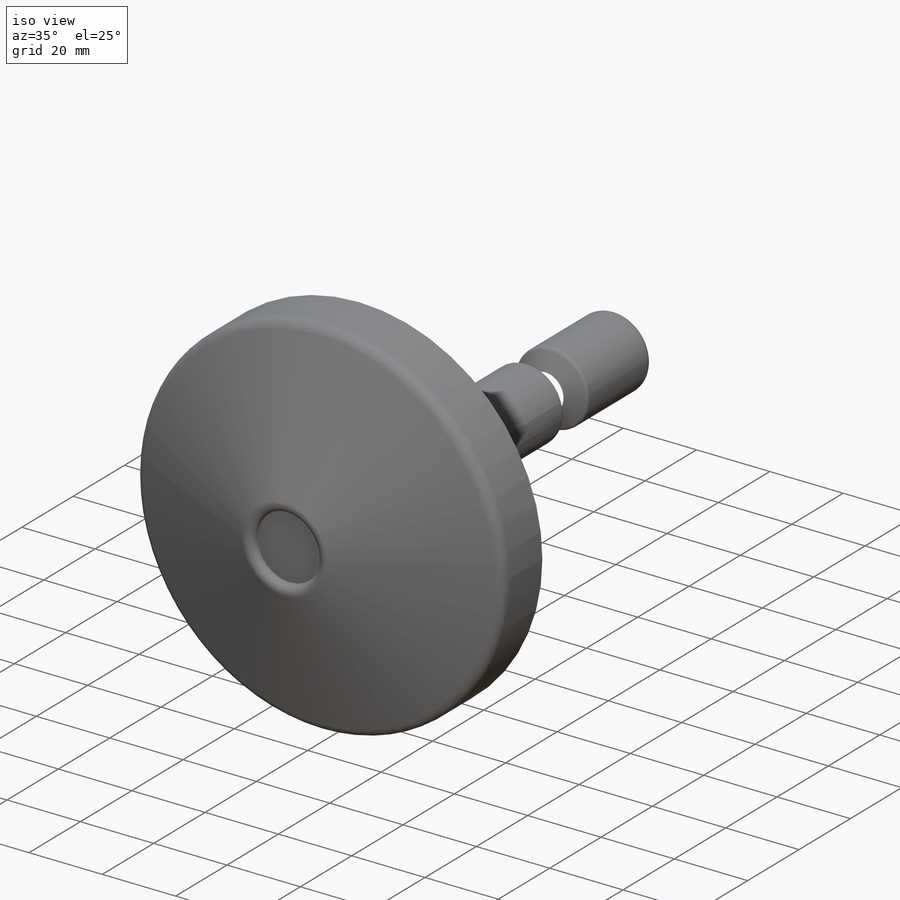
[diagram: iso view]
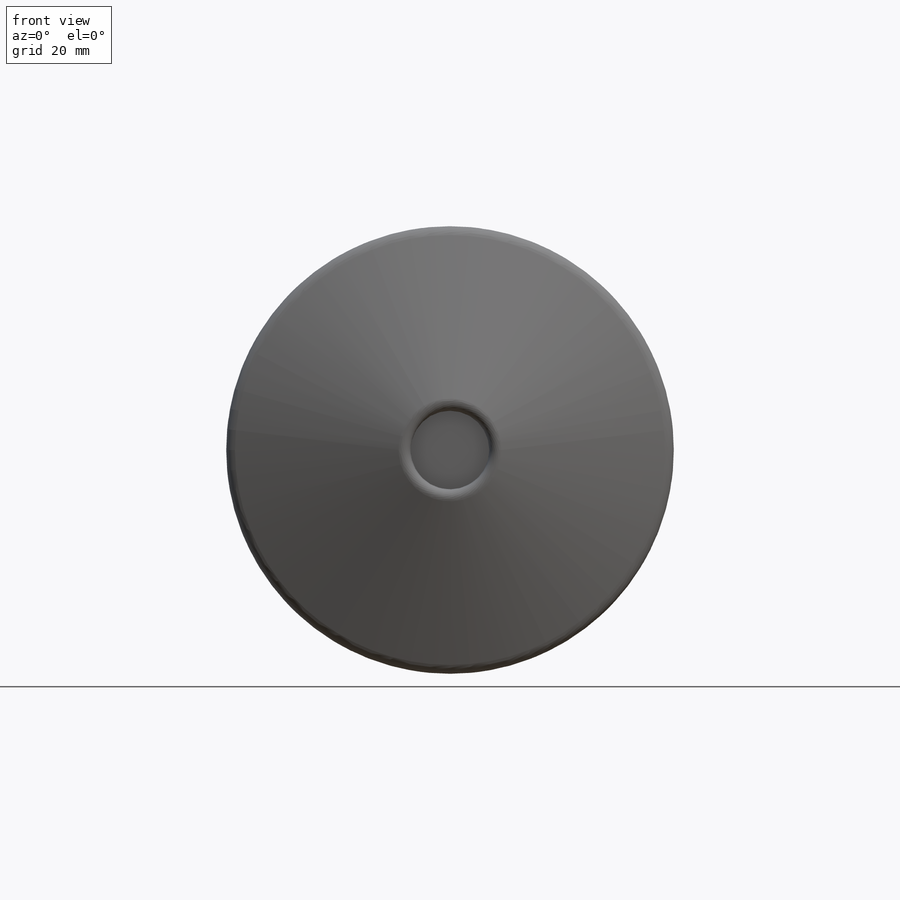
[diagram: front view]
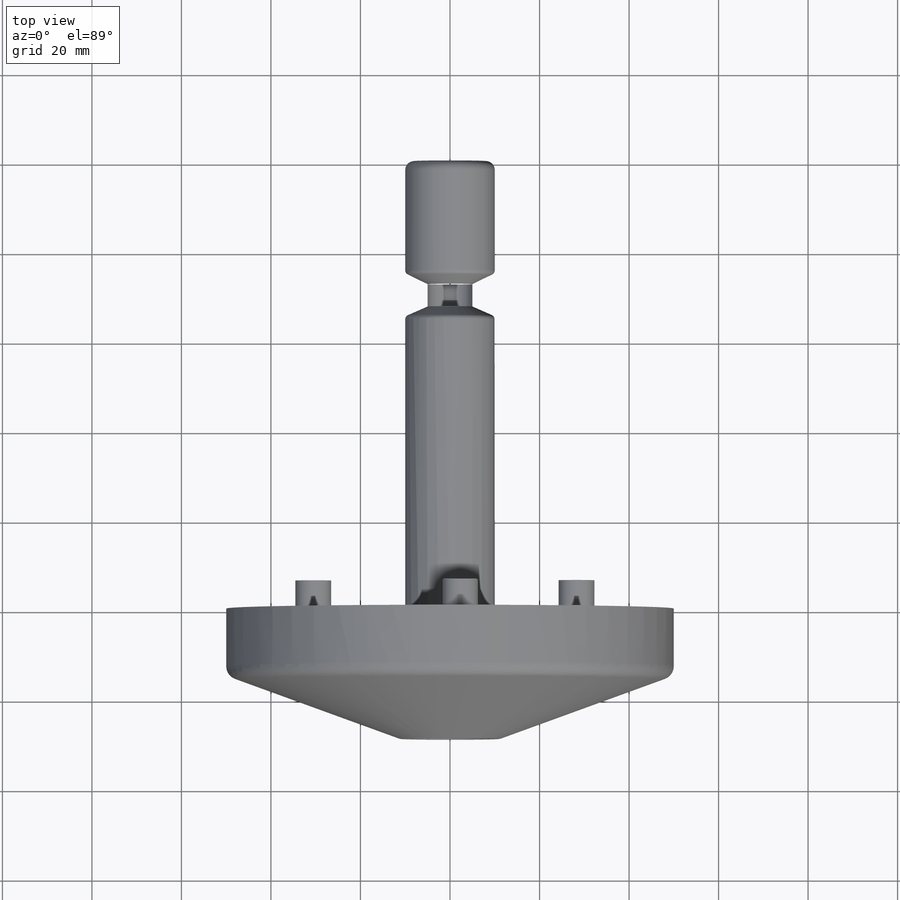
[diagram: top view]
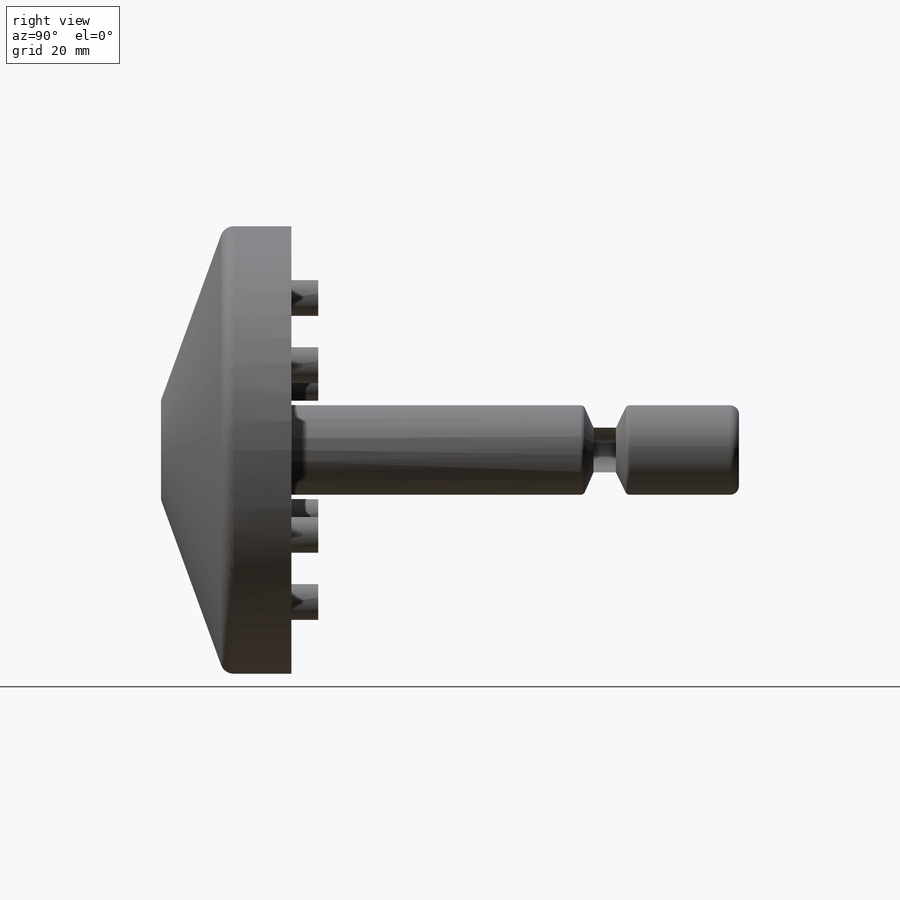
[diagram: right view]
SOLIDWORKS PART (.sldprt)
format: sldprt  version: not decoded by parser v0  size: 320,000 bytes
history: native  units: mm
features: sketch x7, extrude x5, fillet x5, plane x3, delete_body x2, material x1 (+13 scaffold rows collapsed)
feature tree (36):
  scaffold x13  (default folders/planes/origin — collapsed)
  material  "材质 <未指定>"
  plane  "前视基准面"
  plane  "上视基准面"
  plane  "右视基准面"
  sketch  "草图1"  dims[D1=100.0mm]
  extrude  "凸台-拉伸1"  Depth=15mm
  sketch  "草图2"  dims[D1=0.0mm]
  extrude  "凸台-拉伸2"  Depth=15mm
  fillet  "圆角1"  Radius=3mm
  sketch  "草图3"  dims[D1=0.0mm]
  extrude  "凸台-拉伸4"  Depth=6mm
  delete_body  "实体-删除1"
  fillet  "圆角2"  Radius=2mm
  sketch  "草图4"  dims[c1.D6=8.0mm c1.D8=20.0mm c1.D1=15.0mm c1.D2=40.0mm c1.D3=10.0mm c1.D4=15.0mm c1.D5=30.0mm c2.D1=20.0mm c2.D2=20.0mm c2.D3=10.0mm c2.D4=10.0mm c2.D7=3.0]
  extrude  "凸台-拉伸5"  Depth=6mm
  sketch  "草图5"  dims[D1=20.0mm]
  extrude  "凸台-拉伸6"  Depth=100mm
  sketch  "草图6"  dims[c1.D1=100.0mm c1.D2=70.0mm c1.D5=10.0mm c1.D6=5.0mm c1.D7=2.5mm c1.D8=2.5mm c1.D9=5.0mm c1.D3=5.0mm c1.D4=5.0mm c2.D1=360.0deg]
  delete_body  "压凹2"
  fillet  "圆角3"  Radius=2mm
  fillet  "圆角4"  Radius=1mm
  fillet  "圆角5"  Radius=1mm
  sketch  "草图7"  dims[D1=20.0mm]
decode coverage: 17 of 19 modeling features carry decoded parameters
note: suppression state not decoded; provenance and decode notes live in map.json
